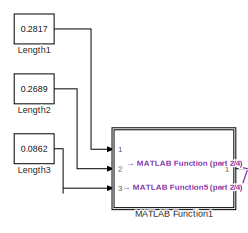
[diagram: root canvas - part 1/4, top center region]
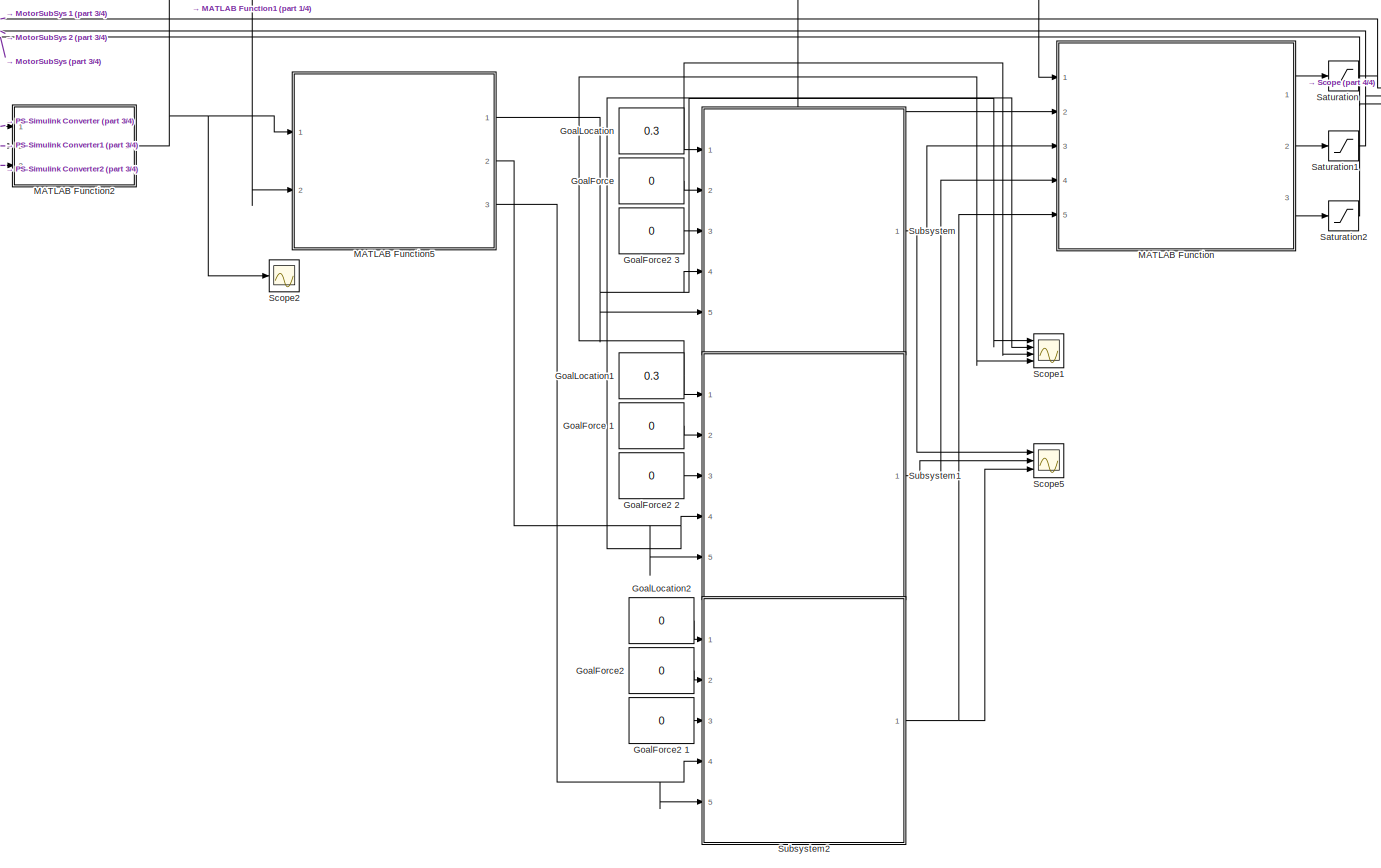
[diagram: root canvas - part 2/4, right side, full height]
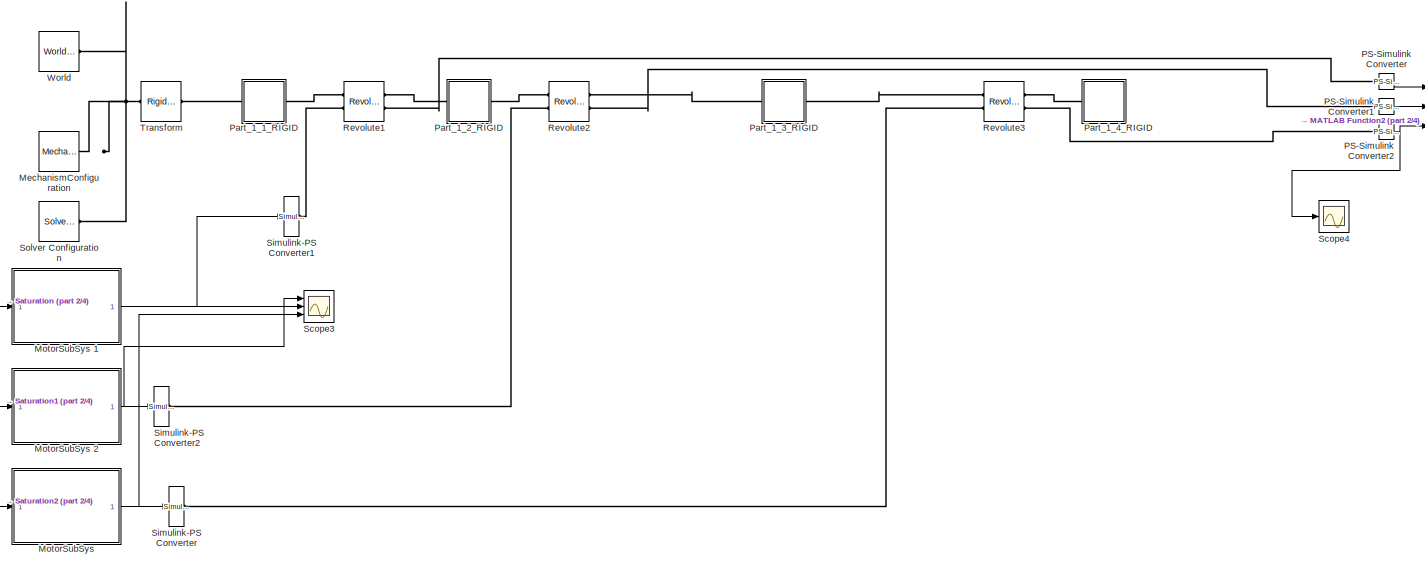
[diagram: root canvas - part 3/4, middle left region]
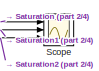
[diagram: root canvas - part 4/4, middle right region]
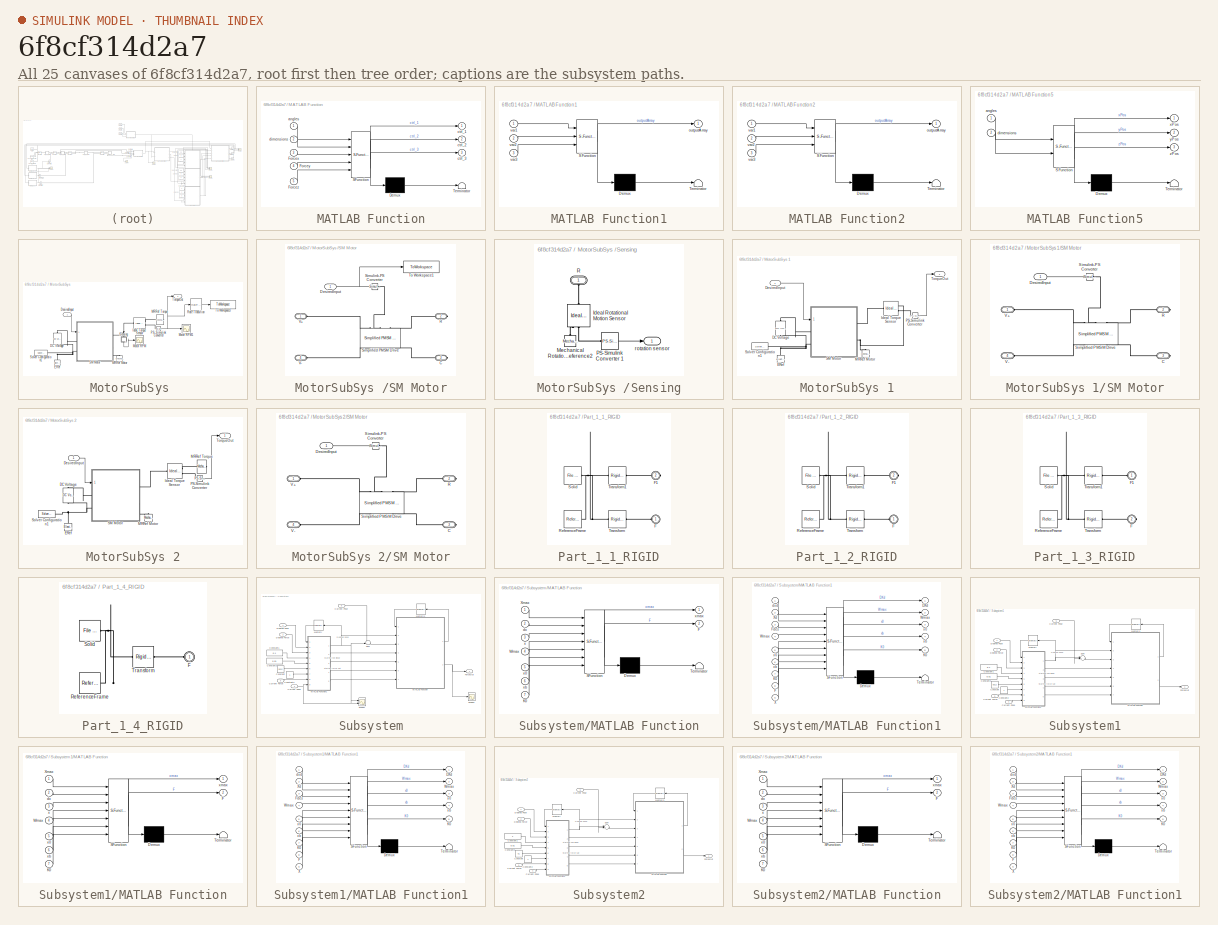
[diagram: thumbnail index - all 25 canvases of the model, root first then tree order]
MODEL slx_6f8cf314d2a7
KIND model
CONFIG AbsTol = auto
CONFIG EnableMultiTasking = off
CONFIG FixedStep = 0.00001
CONFIG MaxStep = auto
CONFIG MinStep = auto
CONFIG RelTol = auto
CONFIG SampleTimeConstraint = Unconstrained
CONFIG Solver = VariableStepAuto
CONFIG SolverName = VariableStepAuto
CONFIG StartTime = 0.0
CONFIG StopTime = inf
WORKSPACE source: external: MATLAB File  (data not in archive)
BLOCK [Constant] GoalForce 
  Value = 0
BLOCK [Constant] GoalForce 1
  Value = 0
BLOCK [Constant] GoalForce2 
  Value = 0
BLOCK [Constant] GoalForce2 1
  Value = 0
BLOCK [Constant] GoalForce2 2
  Value = 0
BLOCK [Constant] GoalForce2 3
  Value = 0
BLOCK [Constant] GoalLocation
  Value = 0.3
BLOCK [Constant] GoalLocation1
  Value = 0.3
BLOCK [Constant] GoalLocation2
  Value = 0
BLOCK [Constant] Length1 
  Value = 0.2817
BLOCK [Constant] Length2 
  Value = 0.2689
BLOCK [Constant] Length3 
  Value = 0.0862
BLOCK [SubSystem] MATLAB Function
  ErrorFcn = Stateflow.Translate.translate
  PermitHierarchicalResolution = ExplicitOnly
  Ports = [5, 3]
  RequestExecContextInheritance = off
  SFBlockType = MATLAB Function
  TreatAsAtomicUnit = on
BLOCK [Demux] MATLAB Function/ Demux 
  Outputs = 1
  Ports = [1, 1]
BLOCK [S-Function] MATLAB Function/ SFunction 
  EnableBusSupport = on
  FunctionName = sf_sfun
  PortCounts = [5 4]
  Ports = [5, 4]
  SFcnIsStateOwnerBlock = off
  SFunctionDeploymentMode = off
  Tag = Stateflow S-Function 2
BLOCK [Terminator] MATLAB Function/ Terminator 
BLOCK [Inport] MATLAB Function/Forcex
  IconDisplay = Port number
  Port = 3
BLOCK [Inport] MATLAB Function/Forcey
  IconDisplay = Port number
  Port = 4
BLOCK [Inport] MATLAB Function/Forcez
  IconDisplay = Port number
  Port = 5
BLOCK [Inport] MATLAB Function/angles
  IconDisplay = Port number
BLOCK [Outport] MATLAB Function/ctrl_1
  IconDisplay = Port number
BLOCK [Outport] MATLAB Function/ctrl_2
  IconDisplay = Port number
  Port = 2
BLOCK [Outport] MATLAB Function/ctrl_3
  IconDisplay = Port number
  Port = 3
BLOCK [Inport] MATLAB Function/dimensions
  IconDisplay = Port number
  Port = 2
BLOCK [SubSystem] MATLAB Function1
  ErrorFcn = Stateflow.Translate.translate
  PermitHierarchicalResolution = ExplicitOnly
  Ports = [3, 1]
  RequestExecContextInheritance = off
  SFBlockType = MATLAB Function
  TreatAsAtomicUnit = on
BLOCK [Demux] MATLAB Function1/ Demux 
  Outputs = 1
  Ports = [1, 1]
BLOCK [S-Function] MATLAB Function1/ SFunction 
  EnableBusSupport = on
  FunctionName = sf_sfun
  PortCounts = [3 2]
  Ports = [3, 2]
  SFcnIsStateOwnerBlock = off
  SFunctionDeploymentMode = off
  Tag = Stateflow S-Function 1
BLOCK [Terminator] MATLAB Function1/ Terminator 
BLOCK [Outport] MATLAB Function1/outputArray
  IconDisplay = Port number
BLOCK [Inport] MATLAB Function1/var1
  IconDisplay = Port number
BLOCK [Inport] MATLAB Function1/var2
  IconDisplay = Port number
  Port = 2
BLOCK [Inport] MATLAB Function1/var3
  IconDisplay = Port number
  Port = 3
BLOCK [SubSystem] MATLAB Function2
  ErrorFcn = Stateflow.Translate.translate
  PermitHierarchicalResolution = ExplicitOnly
  Ports = [3, 1]
  RequestExecContextInheritance = off
  SFBlockType = MATLAB Function
  TreatAsAtomicUnit = on
BLOCK [Demux] MATLAB Function2/ Demux 
  Outputs = 1
  Ports = [1, 1]
BLOCK [S-Function] MATLAB Function2/ SFunction 
  EnableBusSupport = on
  FunctionName = sf_sfun
  PortCounts = [3 2]
  Ports = [3, 2]
  SFcnIsStateOwnerBlock = off
  SFunctionDeploymentMode = off
  Tag = Stateflow S-Function 3
BLOCK [Terminator] MATLAB Function2/ Terminator 
BLOCK [Outport] MATLAB Function2/outputArray
  IconDisplay = Port number
BLOCK [Inport] MATLAB Function2/var1
  IconDisplay = Port number
BLOCK [Inport] MATLAB Function2/var2
  IconDisplay = Port number
  Port = 2
BLOCK [Inport] MATLAB Function2/var3
  IconDisplay = Port number
  Port = 3
BLOCK [SubSystem] MATLAB Function5
  ErrorFcn = Stateflow.Translate.translate
  PermitHierarchicalResolution = ExplicitOnly
  Ports = [2, 3]
  RequestExecContextInheritance = off
  SFBlockType = MATLAB Function
  TreatAsAtomicUnit = on
BLOCK [Demux] MATLAB Function5/ Demux 
  Outputs = 1
  Ports = [1, 1]
BLOCK [S-Function] MATLAB Function5/ SFunction 
  EnableBusSupport = on
  FunctionName = sf_sfun
  PortCounts = [2 4]
  Ports = [2, 4]
  SFcnIsStateOwnerBlock = off
  SFunctionDeploymentMode = off
  Tag = Stateflow S-Function 8
BLOCK [Terminator] MATLAB Function5/ Terminator 
BLOCK [Inport] MATLAB Function5/angles
  IconDisplay = Port number
BLOCK [Inport] MATLAB Function5/dimensions
  IconDisplay = Port number
  Port = 2
BLOCK [Outport] MATLAB Function5/xPos
  IconDisplay = Port number
BLOCK [Outport] MATLAB Function5/yPos
  IconDisplay = Port number
  Port = 2
BLOCK [Outport] MATLAB Function5/zPos
  IconDisplay = Port number
  Port = 3
BLOCK [Reference] MechanismConfiguration  REF=sm_lib/Utilities/Mechanism
Configuration
  Ports = [0, 0, 0, 0, 0, 0, 1]
  SourceBlock = sm_lib/Utilities/Mechanism\nConfiguration
  SourceProductBaseCode = MS
  SourceProductName = Simscape Multibody
  SourceType = Mechanism\nConfiguration
BLOCK [SubSystem] MotorSubSys 
  Ports = [1, 1]
  RequestExecContextInheritance = off
BLOCK [Reference] MotorSubSys /DC Voltage  REF=fl_lib/Electrical/Electrical Sources/DC Voltage Source
  Ports = [0, 0, 0, 0, 0, 1, 1]
  SourceBlock = fl_lib/Electrical/Electrical Sources/DC Voltage Source
  SourceProductBaseCode = SS
  SourceProductName = Simscape
  SourceType = DC Voltage Source
BLOCK [Inport] MotorSubSys /DesiredInput 
  IconDisplay = Port number
BLOCK [Reference] MotorSubSys /ERef  REF=fl_lib/Electrical/Electrical Elements/Electrical Reference
  Ports = [0, 0, 0, 0, 0, 1]
  SourceBlock = fl_lib/Electrical/Electrical Elements/Electrical Reference
  SourceProductBaseCode = SS
  SourceProductName = Simscape
  SourceType = Electrical Reference
BLOCK [Reference] MotorSubSys /Ideal Torque Sensor  REF=fl_lib/Mechanical/Mechanical Sensors/Ideal Torque Sensor
  Ports = [0, 0, 0, 0, 0, 1, 2]
  SourceBlock = fl_lib/Mechanical/Mechanical Sensors/Ideal Torque Sensor
  SourceProductBaseCode = SS
  SourceProductName = Simscape
  SourceType = Ideal Torque Sensor
BLOCK [Reference] MotorSubSys /MRRef Motor  REF=fl_lib/Mechanical/Rotational Elements/Mechanical
Rotational Reference
  Ports = [0, 0, 0, 0, 0, 1]
  SourceBlock = fl_lib/Mechanical/Rotational Elements/Mechanical\nRotational Reference
  SourceProductBaseCode = SS
  SourceProductName = Simscape
  SourceType = Mechanical\nRotational Reference
BLOCK [Reference] MotorSubSys /MRRef Torque  REF=fl_lib/Mechanical/Rotational Elements/Mechanical
Rotational Reference
  Ports = [0, 0, 0, 0, 0, 1]
  SourceBlock = fl_lib/Mechanical/Rotational Elements/Mechanical\nRotational Reference
  SourceProductBaseCode = SS
  SourceProductName = Simscape
  SourceType = Mechanical\nRotational Reference
BLOCK [Scope] MotorSubSys /Motor RPM
  Floating = off
  NumInputPorts = 1
  Ports = [1]
  ScopeSpecificationString = Simulink.scopes.TimeScopeBlockCfg('CurrentConfiguration', extmgr.ConfigurationSet(extmgr.Configuration('Core','General UI',true),extmgr.Configuration('Core','Source UI',true),extmgr.Configuration('Sources','WiredSimulink',true,'DataLoggingSaveFormat','StructureWithTime','DataLoggingLimitDataPoints',true,'DataLoggingDecimation','1','DataLoggingVariableName','ScopeData1'),extmgr.Configuration('Visua...<+1732ch>
BLOCK [Scope] MotorSubSys /Motor RPM1
  Floating = off
  NumInputPorts = 1
  Ports = [1]
  ScopeSpecificationString = Simulink.scopes.TimeScopeBlockCfg('CurrentConfiguration', extmgr.ConfigurationSet(extmgr.Configuration('Core','General UI',true),extmgr.Configuration('Core','Source UI',true),extmgr.Configuration('Sources','WiredSimulink',true,'DataLoggingSaveFormat','StructureWithTime','DataLoggingLimitDataPoints',true,'DataLoggingDecimation','1'),extmgr.Configuration('Visuals','Time Domain',true,'SerializedDispl...<+1695ch>
BLOCK [Reference] MotorSubSys /PS-Simulink Converter  REF=nesl_utility/PS-Simulink
Converter
  Ports = [0, 1, 0, 0, 0, 1]
  SourceBlock = nesl_utility/PS-Simulink\nConverter
  SourceProductBaseCode = SS
  SourceProductName = Simscape
  SourceType = PS-Simulink\nConverter
BLOCK [RateTransition] MotorSubSys /Rate Transition
  OutPortSampleTime = 1e-3
BLOCK [SubSystem] MotorSubSys /SM Motor
  Ports = [1, 0, 0, 0, 0, 2, 2]
  RequestExecContextInheritance = off
  Tag = PublishSubsystem
BLOCK [PMIOPort] MotorSubSys /SM Motor/C
  Port = 3
  Side = Right
BLOCK [Inport] MotorSubSys /SM Motor/DesiredInput 
  IconDisplay = Port number
BLOCK [PMIOPort] MotorSubSys /SM Motor/R
  Port = 2
  Side = Right
BLOCK [Reference] MotorSubSys /SM Motor/Simplified PMSM Drive  REF=ee_lib/Electromechanical/Permanent Magnet/Simplified PMSM
Drive
  Ports = [0, 0, 0, 0, 0, 3, 3]
  SourceBlock = ee_lib/Electromechanical/Permanent Magnet/Simplified PMSM\nDrive
  SourceProductBaseCode = PS
  SourceProductName = Simscape Electrical
  SourceType = Simplified PMSM\nDrive
BLOCK [Reference] MotorSubSys /SM Motor/Simulink-PS Converter  REF=nesl_utility/Simulink-PS
Converter
  Ports = [1, 0, 0, 0, 0, 0, 1]
  SourceBlock = nesl_utility/Simulink-PS\nConverter
  SourceProductBaseCode = SS
  SourceProductName = Simscape
  SourceType = Simulink-PS\nConverter
BLOCK [ToWorkspace] MotorSubSys /SM Motor/To Workspace1
  FixptAsFi = on
  MaxDataPoints = inf
  Ports = [1]
  SampleTime = -1
  VariableName = desiredTorque
BLOCK [PMIOPort] MotorSubSys /SM Motor/V+
  Side = Left
BLOCK [PMIOPort] MotorSubSys /SM Motor/V-
  Port = 4
  Side = Left
BLOCK [SubSystem] MotorSubSys /Sensing
  Ports = [0, 1, 0, 0, 0, 1]
  RequestExecContextInheritance = off
BLOCK [Reference] MotorSubSys /Sensing/Ideal Rotational Motion Sensor  REF=fl_lib/Mechanical/Mechanical Sensors/Ideal Rotational
Motion Sensor
  Ports = [0, 0, 0, 0, 0, 1, 3]
  SourceBlock = fl_lib/Mechanical/Mechanical Sensors/Ideal Rotational\nMotion Sensor
  SourceProductBaseCode = SS
  SourceProductName = Simscape
  SourceType = Ideal Rotational\nMotion Sensor
BLOCK [Reference] MotorSubSys /Sensing/Mechanical Rotational Reference2  REF=fl_lib/Mechanical/Rotational Elements/Mechanical
Rotational Reference
  Ports = [0, 0, 0, 0, 0, 1]
  SourceBlock = fl_lib/Mechanical/Rotational Elements/Mechanical\nRotational Reference
  SourceProductBaseCode = SS
  SourceProductName = Simscape
  SourceType = Mechanical\nRotational Reference
BLOCK [Reference] MotorSubSys /Sensing/PS-Simulink Converter 1  REF=nesl_utility/PS-Simulink
Converter
  Ports = [0, 1, 0, 0, 0, 1]
  SourceBlock = nesl_utility/PS-Simulink\nConverter
  SourceProductBaseCode = SS
  SourceProductName = Simscape
  SourceType = PS-Simulink\nConverter
BLOCK [PMIOPort] MotorSubSys /Sensing/R
  Side = Left
BLOCK [Outport] MotorSubSys /Sensing/rotation sensor 
  IconDisplay = Port number
  VectorParamsAs1DForOutWhenUnconnected = off
BLOCK [Reference] MotorSubSys /Solver Configuration1  REF=nesl_utility/Solver
Configuration
  Ports = [0, 0, 0, 0, 0, 0, 1]
  SourceBlock = nesl_utility/Solver\nConfiguration
  SourceProductBaseCode = SS
  SourceProductName = Simscape
  SourceType = Solver\nConfiguration
BLOCK [ToWorkspace] MotorSubSys /To Workspace3
  FixptAsFi = on
  MaxDataPoints = inf
  Ports = [1]
  SampleTime = -1
  SaveFormat = Structure With Time
  VariableName = normalisedTorque
BLOCK [Outport] MotorSubSys /TorqueOut 
  IconDisplay = Port number
BLOCK [SubSystem] MotorSubSys 1
  Ports = [1, 1]
  RequestExecContextInheritance = off
BLOCK [Reference] MotorSubSys 1/DC Voltage  REF=fl_lib/Electrical/Electrical Sources/DC Voltage Source
  Ports = [0, 0, 0, 0, 0, 1, 1]
  SourceBlock = fl_lib/Electrical/Electrical Sources/DC Voltage Source
  SourceProductBaseCode = SS
  SourceProductName = Simscape
  SourceType = DC Voltage Source
BLOCK [Inport] MotorSubSys 1/DesiredInput 
  IconDisplay = Port number
BLOCK [Reference] MotorSubSys 1/ERef  REF=fl_lib/Electrical/Electrical Elements/Electrical Reference
  Ports = [0, 0, 0, 0, 0, 1]
  SourceBlock = fl_lib/Electrical/Electrical Elements/Electrical Reference
  SourceProductBaseCode = SS
  SourceProductName = Simscape
  SourceType = Electrical Reference
BLOCK [Reference] MotorSubSys 1/Ideal Torque Sensor  REF=fl_lib/Mechanical/Mechanical Sensors/Ideal Torque Sensor
  Ports = [0, 0, 0, 0, 0, 1, 2]
  SourceBlock = fl_lib/Mechanical/Mechanical Sensors/Ideal Torque Sensor
  SourceProductBaseCode = SS
  SourceProductName = Simscape
  SourceType = Ideal Torque Sensor
BLOCK [Reference] MotorSubSys 1/MRRef Motor  REF=fl_lib/Mechanical/Rotational Elements/Mechanical
Rotational Reference
  Ports = [0, 0, 0, 0, 0, 1]
  SourceBlock = fl_lib/Mechanical/Rotational Elements/Mechanical\nRotational Reference
  SourceProductBaseCode = SS
  SourceProductName = Simscape
  SourceType = Mechanical\nRotational Reference
BLOCK [Reference] MotorSubSys 1/PS-Simulink Converter  REF=nesl_utility/PS-Simulink
Converter
  Ports = [0, 1, 0, 0, 0, 1]
  SourceBlock = nesl_utility/PS-Simulink\nConverter
  SourceProductBaseCode = SS
  SourceProductName = Simscape
  SourceType = PS-Simulink\nConverter
BLOCK [SubSystem] MotorSubSys 1/SM Motor
  Ports = [1, 0, 0, 0, 0, 2, 2]
  RequestExecContextInheritance = off
  Tag = PublishSubsystem
BLOCK [PMIOPort] MotorSubSys 1/SM Motor/C
  Port = 3
  Side = Right
BLOCK [Inport] MotorSubSys 1/SM Motor/DesiredInput 
  IconDisplay = Port number
BLOCK [PMIOPort] MotorSubSys 1/SM Motor/R
  Port = 2
  Side = Right
BLOCK [Reference] MotorSubSys 1/SM Motor/Simplified PMSM Drive  REF=ee_lib/Electromechanical/Permanent Magnet/Simplified PMSM
Drive
  Ports = [0, 0, 0, 0, 0, 3, 3]
  SourceBlock = ee_lib/Electromechanical/Permanent Magnet/Simplified PMSM\nDrive
  SourceProductBaseCode = PS
  SourceProductName = Simscape Electrical
  SourceType = Simplified PMSM\nDrive
BLOCK [Reference] MotorSubSys 1/SM Motor/Simulink-PS Converter  REF=nesl_utility/Simulink-PS
Converter
  Ports = [1, 0, 0, 0, 0, 0, 1]
  SourceBlock = nesl_utility/Simulink-PS\nConverter
  SourceProductBaseCode = SS
  SourceProductName = Simscape
  SourceType = Simulink-PS\nConverter
BLOCK [PMIOPort] MotorSubSys 1/SM Motor/V+
  Side = Left
BLOCK [PMIOPort] MotorSubSys 1/SM Motor/V-
  Port = 4
  Side = Left
BLOCK [Reference] MotorSubSys 1/Solver Configuration1  REF=nesl_utility/Solver
Configuration
  Ports = [0, 0, 0, 0, 0, 0, 1]
  SourceBlock = nesl_utility/Solver\nConfiguration
  SourceProductBaseCode = SS
  SourceProductName = Simscape
  SourceType = Solver\nConfiguration
BLOCK [Outport] MotorSubSys 1/TorqueOut 
  IconDisplay = Port number
BLOCK [SubSystem] MotorSubSys 2
  Ports = [1, 1]
  RequestExecContextInheritance = off
BLOCK [Reference] MotorSubSys 2/DC Voltage  REF=fl_lib/Electrical/Electrical Sources/DC Voltage Source
  Ports = [0, 0, 0, 0, 0, 1, 1]
  SourceBlock = fl_lib/Electrical/Electrical Sources/DC Voltage Source
  SourceProductBaseCode = SS
  SourceProductName = Simscape
  SourceType = DC Voltage Source
BLOCK [Inport] MotorSubSys 2/DesiredInput 
  IconDisplay = Port number
BLOCK [Reference] MotorSubSys 2/ERef  REF=fl_lib/Electrical/Electrical Elements/Electrical Reference
  Ports = [0, 0, 0, 0, 0, 1]
  SourceBlock = fl_lib/Electrical/Electrical Elements/Electrical Reference
  SourceProductBaseCode = SS
  SourceProductName = Simscape
  SourceType = Electrical Reference
BLOCK [Reference] MotorSubSys 2/Ideal Torque Sensor  REF=fl_lib/Mechanical/Mechanical Sensors/Ideal Torque Sensor
  Ports = [0, 0, 0, 0, 0, 1, 2]
  SourceBlock = fl_lib/Mechanical/Mechanical Sensors/Ideal Torque Sensor
  SourceProductBaseCode = SS
  SourceProductName = Simscape
  SourceType = Ideal Torque Sensor
BLOCK [Reference] MotorSubSys 2/MRRef Motor  REF=fl_lib/Mechanical/Rotational Elements/Mechanical
Rotational Reference
  Ports = [0, 0, 0, 0, 0, 1]
  SourceBlock = fl_lib/Mechanical/Rotational Elements/Mechanical\nRotational Reference
  SourceProductBaseCode = SS
  SourceProductName = Simscape
  SourceType = Mechanical\nRotational Reference
BLOCK [Reference] MotorSubSys 2/MRRef Torque  REF=fl_lib/Mechanical/Rotational Elements/Mechanical
Rotational Reference
  Ports = [0, 0, 0, 0, 0, 1]
  SourceBlock = fl_lib/Mechanical/Rotational Elements/Mechanical\nRotational Reference
  SourceProductBaseCode = SS
  SourceProductName = Simscape
  SourceType = Mechanical\nRotational Reference
BLOCK [Reference] MotorSubSys 2/PS-Simulink Converter  REF=nesl_utility/PS-Simulink
Converter
  Ports = [0, 1, 0, 0, 0, 1]
  SourceBlock = nesl_utility/PS-Simulink\nConverter
  SourceProductBaseCode = SS
  SourceProductName = Simscape
  SourceType = PS-Simulink\nConverter
BLOCK [SubSystem] MotorSubSys 2/SM Motor
  Ports = [1, 0, 0, 0, 0, 2, 2]
  RequestExecContextInheritance = off
  Tag = PublishSubsystem
BLOCK [PMIOPort] MotorSubSys 2/SM Motor/C
  Port = 3
  Side = Right
BLOCK [Inport] MotorSubSys 2/SM Motor/DesiredInput 
  IconDisplay = Port number
BLOCK [PMIOPort] MotorSubSys 2/SM Motor/R
  Port = 2
  Side = Right
BLOCK [Reference] MotorSubSys 2/SM Motor/Simplified PMSM Drive  REF=ee_lib/Electromechanical/Permanent Magnet/Simplified PMSM
Drive
  Ports = [0, 0, 0, 0, 0, 3, 3]
  SourceBlock = ee_lib/Electromechanical/Permanent Magnet/Simplified PMSM\nDrive
  SourceProductBaseCode = PS
  SourceProductName = Simscape Electrical
  SourceType = Simplified PMSM\nDrive
BLOCK [Reference] MotorSubSys 2/SM Motor/Simulink-PS Converter  REF=nesl_utility/Simulink-PS
Converter
  Ports = [1, 0, 0, 0, 0, 0, 1]
  SourceBlock = nesl_utility/Simulink-PS\nConverter
  SourceProductBaseCode = SS
  SourceProductName = Simscape
  SourceType = Simulink-PS\nConverter
BLOCK [PMIOPort] MotorSubSys 2/SM Motor/V+
  Side = Left
BLOCK [PMIOPort] MotorSubSys 2/SM Motor/V-
  Port = 4
  Side = Left
BLOCK [Reference] MotorSubSys 2/Solver Configuration1  REF=nesl_utility/Solver
Configuration
  Ports = [0, 0, 0, 0, 0, 0, 1]
  SourceBlock = nesl_utility/Solver\nConfiguration
  SourceProductBaseCode = SS
  SourceProductName = Simscape
  SourceType = Solver\nConfiguration
BLOCK [Outport] MotorSubSys 2/TorqueOut 
  IconDisplay = Port number
BLOCK [Reference] PS-Simulink Converter  REF=nesl_utility/PS-Simulink
Converter
  Ports = [0, 1, 0, 0, 0, 1]
  SourceBlock = nesl_utility/PS-Simulink\nConverter
  SourceProductBaseCode = SS
  SourceProductName = Simscape
  SourceType = PS-Simulink\nConverter
BLOCK [Reference] PS-Simulink Converter1  REF=nesl_utility/PS-Simulink
Converter
  Ports = [0, 1, 0, 0, 0, 1]
  SourceBlock = nesl_utility/PS-Simulink\nConverter
  SourceProductBaseCode = SS
  SourceProductName = Simscape
  SourceType = PS-Simulink\nConverter
BLOCK [Reference] PS-Simulink Converter2  REF=nesl_utility/PS-Simulink
Converter
  Ports = [0, 1, 0, 0, 0, 1]
  SourceBlock = nesl_utility/PS-Simulink\nConverter
  SourceProductBaseCode = SS
  SourceProductName = Simscape
  SourceType = PS-Simulink\nConverter
BLOCK [SubSystem] Part_1_1_RIGID
  Ports = [0, 0, 0, 0, 0, 1, 1]
  RequestExecContextInheritance = off
BLOCK [PMIOPort] Part_1_1_RIGID/F
  Side = Left
BLOCK [PMIOPort] Part_1_1_RIGID/F1
  Port = 2
  Side = Right
BLOCK [Reference] Part_1_1_RIGID/ReferenceFrame  REF=sm_lib/Frames and
Transforms/Reference
Frame
  Ports = [0, 0, 0, 0, 0, 0, 1]
  SourceBlock = sm_lib/Frames and\nTransforms/Reference\nFrame
  SourceProductBaseCode = MS
  SourceProductName = Simscape Multibody
  SourceType = Reference\nFrame
BLOCK [Reference] Part_1_1_RIGID/Solid  REF=sm_lib/Body Elements/File Solid
  Ports = [0, 0, 0, 0, 0, 0, 1]
  SourceBlock = sm_lib/Body Elements/File Solid
  SourceProductBaseCode = MS
  SourceProductName = Simscape Multibody
  SourceType = File Solid
BLOCK [Reference] Part_1_1_RIGID/Transform  REF=sm_lib/Frames and
Transforms/Rigid
Transform
  Ports = [0, 0, 0, 0, 0, 1, 1]
  SourceBlock = sm_lib/Frames and\nTransforms/Rigid\nTransform
  SourceProductBaseCode = MS
  SourceProductName = Simscape Multibody
  SourceType = Rigid\nTransform
BLOCK [Reference] Part_1_1_RIGID/Transform1  REF=sm_lib/Frames and
Transforms/Rigid
Transform
  Ports = [0, 0, 0, 0, 0, 1, 1]
  SourceBlock = sm_lib/Frames and\nTransforms/Rigid\nTransform
  SourceProductBaseCode = MS
  SourceProductName = Simscape Multibody
  SourceType = Rigid\nTransform
BLOCK [SubSystem] Part_1_2_RIGID
  Ports = [0, 0, 0, 0, 0, 1, 1]
  RequestExecContextInheritance = off
BLOCK [PMIOPort] Part_1_2_RIGID/F
  Side = Left
BLOCK [PMIOPort] Part_1_2_RIGID/F1
  Port = 2
  Side = Right
BLOCK [Reference] Part_1_2_RIGID/ReferenceFrame  REF=sm_lib/Frames and
Transforms/Reference
Frame
  Ports = [0, 0, 0, 0, 0, 0, 1]
  SourceBlock = sm_lib/Frames and\nTransforms/Reference\nFrame
  SourceProductBaseCode = MS
  SourceProductName = Simscape Multibody
  SourceType = Reference\nFrame
BLOCK [Reference] Part_1_2_RIGID/Solid  REF=sm_lib/Body Elements/File Solid
  Ports = [0, 0, 0, 0, 0, 0, 1]
  SourceBlock = sm_lib/Body Elements/File Solid
  SourceProductBaseCode = MS
  SourceProductName = Simscape Multibody
  SourceType = File Solid
BLOCK [Reference] Part_1_2_RIGID/Transform  REF=sm_lib/Frames and
Transforms/Rigid
Transform
  Ports = [0, 0, 0, 0, 0, 1, 1]
  SourceBlock = sm_lib/Frames and\nTransforms/Rigid\nTransform
  SourceProductBaseCode = MS
  SourceProductName = Simscape Multibody
  SourceType = Rigid\nTransform
BLOCK [Reference] Part_1_2_RIGID/Transform1  REF=sm_lib/Frames and
Transforms/Rigid
Transform
  Ports = [0, 0, 0, 0, 0, 1, 1]
  SourceBlock = sm_lib/Frames and\nTransforms/Rigid\nTransform
  SourceProductBaseCode = MS
  SourceProductName = Simscape Multibody
  SourceType = Rigid\nTransform
BLOCK [SubSystem] Part_1_3_RIGID
  Ports = [0, 0, 0, 0, 0, 1, 1]
  RequestExecContextInheritance = off
BLOCK [PMIOPort] Part_1_3_RIGID/F
  Port = 2
  Side = Right
BLOCK [PMIOPort] Part_1_3_RIGID/F1
  Side = Left
BLOCK [Reference] Part_1_3_RIGID/ReferenceFrame  REF=sm_lib/Frames and
Transforms/Reference
Frame
  Ports = [0, 0, 0, 0, 0, 0, 1]
  SourceBlock = sm_lib/Frames and\nTransforms/Reference\nFrame
  SourceProductBaseCode = MS
  SourceProductName = Simscape Multibody
  SourceType = Reference\nFrame
BLOCK [Reference] Part_1_3_RIGID/Solid  REF=sm_lib/Body Elements/File Solid
  Ports = [0, 0, 0, 0, 0, 0, 1]
  SourceBlock = sm_lib/Body Elements/File Solid
  SourceProductBaseCode = MS
  SourceProductName = Simscape Multibody
  SourceType = File Solid
BLOCK [Reference] Part_1_3_RIGID/Transform  REF=sm_lib/Frames and
Transforms/Rigid
Transform
  Ports = [0, 0, 0, 0, 0, 1, 1]
  SourceBlock = sm_lib/Frames and\nTransforms/Rigid\nTransform
  SourceProductBaseCode = MS
  SourceProductName = Simscape Multibody
  SourceType = Rigid\nTransform
BLOCK [Reference] Part_1_3_RIGID/Transform1  REF=sm_lib/Frames and
Transforms/Rigid
Transform
  Ports = [0, 0, 0, 0, 0, 1, 1]
  SourceBlock = sm_lib/Frames and\nTransforms/Rigid\nTransform
  SourceProductBaseCode = MS
  SourceProductName = Simscape Multibody
  SourceType = Rigid\nTransform
BLOCK [SubSystem] Part_1_4_RIGID
  Ports = [0, 0, 0, 0, 0, 1]
  RequestExecContextInheritance = off
BLOCK [PMIOPort] Part_1_4_RIGID/F
  Side = Left
BLOCK [Reference] Part_1_4_RIGID/ReferenceFrame  REF=sm_lib/Frames and
Transforms/Reference
Frame
  Ports = [0, 0, 0, 0, 0, 0, 1]
  SourceBlock = sm_lib/Frames and\nTransforms/Reference\nFrame
  SourceProductBaseCode = MS
  SourceProductName = Simscape Multibody
  SourceType = Reference\nFrame
BLOCK [Reference] Part_1_4_RIGID/Solid  REF=sm_lib/Body Elements/File Solid
  Ports = [0, 0, 0, 0, 0, 0, 1]
  SourceBlock = sm_lib/Body Elements/File Solid
  SourceProductBaseCode = MS
  SourceProductName = Simscape Multibody
  SourceType = File Solid
BLOCK [Reference] Part_1_4_RIGID/Transform  REF=sm_lib/Frames and
Transforms/Rigid
Transform
  Ports = [0, 0, 0, 0, 0, 1, 1]
  SourceBlock = sm_lib/Frames and\nTransforms/Rigid\nTransform
  SourceProductBaseCode = MS
  SourceProductName = Simscape Multibody
  SourceType = Rigid\nTransform
BLOCK [Reference] Revolute1  REF=sm_lib/Joints/Revolute Joint
  Ports = [0, 0, 0, 0, 0, 2, 2]
  SourceBlock = sm_lib/Joints/Revolute Joint
  SourceProductBaseCode = MS
  SourceProductName = Simscape Multibody
  SourceType = Revolute Joint
BLOCK [Reference] Revolute2  REF=sm_lib/Joints/Revolute Joint
  Ports = [0, 0, 0, 0, 0, 2, 2]
  SourceBlock = sm_lib/Joints/Revolute Joint
  SourceProductBaseCode = MS
  SourceProductName = Simscape Multibody
  SourceType = Revolute Joint
BLOCK [Reference] Revolute3  REF=sm_lib/Joints/Revolute Joint
  Ports = [0, 0, 0, 0, 0, 2, 2]
  SourceBlock = sm_lib/Joints/Revolute Joint
  SourceProductBaseCode = MS
  SourceProductName = Simscape Multibody
  SourceType = Revolute Joint
BLOCK [Saturate] Saturation
  Commented = through
  InputPortMap = u0
  LowerLimit = -0.1
  Ports = [1, 1]
  UpperLimit = 0.1
BLOCK [Saturate] Saturation1
  Commented = through
  InputPortMap = u0
  LowerLimit = -0.1
  Ports = [1, 1]
  UpperLimit = 0.1
BLOCK [Saturate] Saturation2
  Commented = through
  InputPortMap = u0
  LowerLimit = -0.1
  Ports = [1, 1]
  UpperLimit = 0.1
BLOCK [Scope] Scope
  Floating = off
  NumInputPorts = 3
  Ports = [3]
  ScopeSpecificationString = Simulink.scopes.TimeScopeBlockCfg('CurrentConfiguration', extmgr.ConfigurationSet(extmgr.Configuration('Core','General UI',true),extmgr.Configuration('Core','Source UI',true),extmgr.Configuration('Sources','WiredSimulink',true,'DataLoggingVariableName','ScopeData1'),extmgr.Configuration('Visuals','Time Domain',true,'SerializedDisplays',{struct('MinYLimReal','-0.0782','MaxYLimReal','0.07944','YLabe...<+1451ch>
BLOCK [Scope] Scope1
  Floating = off
  NumInputPorts = 4
  Ports = [4]
  ScopeSpecificationString = Simulink.scopes.TimeScopeBlockCfg('CurrentConfiguration', extmgr.ConfigurationSet(extmgr.Configuration('Core','General UI',true),extmgr.Configuration('Core','Source UI',true),extmgr.Configuration('Sources','WiredSimulink',true,'DataLoggingVariableName','ScopeData2'),extmgr.Configuration('Visuals','Time Domain',true,'SerializedDisplays',{struct('MinYLimReal','0.23118','MaxYLimReal','0.30765','YLabe...<+1509ch>
BLOCK [Scope] Scope2
  Floating = off
  NumInputPorts = 1
  Ports = [1]
  ScopeSpecificationString = Simulink.scopes.TimeScopeBlockCfg('CurrentConfiguration', extmgr.ConfigurationSet(extmgr.Configuration('Core','General UI',true),extmgr.Configuration('Core','Source UI',true),extmgr.Configuration('Sources','WiredSimulink',true,'DataLoggingVariableName','ScopeData3'),extmgr.Configuration('Visuals','Time Domain',true,'SerializedDisplays',{struct('MinYLimReal','-38.49214','MaxYLimReal','195.52784','Y...<+1484ch>
BLOCK [Scope] Scope3
  Floating = off
  NumInputPorts = 3
  Ports = [3]
  ScopeSpecificationString = Simulink.scopes.TimeScopeBlockCfg('CurrentConfiguration', extmgr.ConfigurationSet(extmgr.Configuration('Core','General UI',true),extmgr.Configuration('Core','Source UI',true),extmgr.Configuration('Sources','WiredSimulink',true,'DataLoggingVariableName','ScopeData4'),extmgr.Configuration('Visuals','Time Domain',true,'SerializedDisplays',{struct('MinYLimReal','-0.58107','MaxYLimReal','0.72066','YLab...<+1478ch>
BLOCK [Scope] Scope4
  Floating = off
  NumInputPorts = 1
  Ports = [1]
  ScopeSpecificationString = Simulink.scopes.TimeScopeBlockCfg('CurrentConfiguration', extmgr.ConfigurationSet(extmgr.Configuration('Core','General UI',true),extmgr.Configuration('Core','Source UI',true),extmgr.Configuration('Sources','WiredSimulink',true,'DataLoggingVariableName','ScopeData1'),extmgr.Configuration('Visuals','Time Domain',true,'SerializedDisplays',{struct('MinYLimReal','-0.15644','MaxYLimReal','1.40799','YLab...<+1435ch>
BLOCK [Scope] Scope5
  Floating = off
  NumInputPorts = 3
  Ports = [3]
  ScopeSpecificationString = Simulink.scopes.TimeScopeBlockCfg('CurrentConfiguration', extmgr.ConfigurationSet(extmgr.Configuration('Core','General UI',true),extmgr.Configuration('Core','Source UI',true),extmgr.Configuration('Sources','WiredSimulink',true,'DataLoggingVariableName','ScopeData2'),extmgr.Configuration('Visuals','Time Domain',true,'SerializedDisplays',{struct('MinYLimReal','-12.5','MaxYLimReal','12.5','YLabelReal...<+1449ch>
BLOCK [Reference] Simulink-PS Converter  REF=nesl_utility/Simulink-PS
Converter
  Ports = [1, 0, 0, 0, 0, 0, 1]
  SourceBlock = nesl_utility/Simulink-PS\nConverter
  SourceProductBaseCode = SS
  SourceProductName = Simscape
  SourceType = Simulink-PS\nConverter
BLOCK [Reference] Simulink-PS Converter1  REF=nesl_utility/Simulink-PS
Converter
  Ports = [1, 0, 0, 0, 0, 0, 1]
  SourceBlock = nesl_utility/Simulink-PS\nConverter
  SourceProductBaseCode = SS
  SourceProductName = Simscape
  SourceType = Simulink-PS\nConverter
BLOCK [Reference] Simulink-PS Converter2  REF=nesl_utility/Simulink-PS
Converter
  Ports = [1, 0, 0, 0, 0, 0, 1]
  SourceBlock = nesl_utility/Simulink-PS\nConverter
  SourceProductBaseCode = SS
  SourceProductName = Simscape
  SourceType = Simulink-PS\nConverter
BLOCK [Reference] Solver Configuration  REF=nesl_utility/Solver
Configuration
  Ports = [0, 0, 0, 0, 0, 0, 1]
  SourceBlock = nesl_utility/Solver\nConfiguration
  SourceProductBaseCode = SS
  SourceProductName = Simscape
  SourceType = Solver\nConfiguration
BLOCK [SubSystem] Subsystem
  Ports = [5, 1]
  RequestExecContextInheritance = off
BLOCK [Constant] Subsystem/Constant
  Value = 0.012
BLOCK [Constant] Subsystem/Constant1
  Value = 0.1
BLOCK [Constant] Subsystem/Constant2
BLOCK [Constant] Subsystem/Constant3
  Value = 0.01
BLOCK [Inport] Subsystem/Current Force
  IconDisplay = Port number
  Port = 3
BLOCK [Inport] Subsystem/Current Pose
  IconDisplay = Port number
  Port = 4
BLOCK [Inport] Subsystem/Current Pose 
  IconDisplay = Port number
  Port = 5
BLOCK [Inport] Subsystem/Desired Force
  IconDisplay = Port number
  Port = 2
BLOCK [Inport] Subsystem/Desired Pose
  IconDisplay = Port number
BLOCK [Outport] Subsystem/ForceOut
  IconDisplay = Port number
BLOCK [SubSystem] Subsystem/MATLAB Function
  ErrorFcn = Stateflow.Translate.translate
  PermitHierarchicalResolution = ExplicitOnly
  Ports = [7, 2]
  RequestExecContextInheritance = off
  SFBlockType = MATLAB Function
  TreatAsAtomicUnit = on
BLOCK [Demux] Subsystem/MATLAB Function/ Demux 
  Outputs = 1
  Ports = [1, 1]
BLOCK [S-Function] Subsystem/MATLAB Function/ SFunction 
  EnableBusSupport = on
  FunctionName = sf_sfun
  PortCounts = [7 3]
  Ports = [7, 3]
  SFcnIsStateOwnerBlock = off
  SFunctionDeploymentMode = off
  Tag = Stateflow S-Function 4
BLOCK [Terminator] Subsystem/MATLAB Function/ Terminator 
BLOCK [Outport] Subsystem/MATLAB Function/F
  IconDisplay = Port number
  Port = 2
BLOCK [Inport] Subsystem/MATLAB Function/K0
  IconDisplay = Port number
  Port = 7
BLOCK [Inport] Subsystem/MATLAB Function/Wmax
  IconDisplay = Port number
  Port = 4
BLOCK [Inport] Subsystem/MATLAB Function/Xmax
  IconDisplay = Port number
BLOCK [Inport] Subsystem/MATLAB Function/dx
  IconDisplay = Port number
  Port = 2
BLOCK [Inport] Subsystem/MATLAB Function/x
  IconDisplay = Port number
  Port = 3
BLOCK [Inport] Subsystem/MATLAB Function/x0
  IconDisplay = Port number
  Port = 5
BLOCK [Inport] Subsystem/MATLAB Function/xb
  IconDisplay = Port number
  Port = 6
BLOCK [Outport] Subsystem/MATLAB Function/xmax
  IconDisplay = Port number
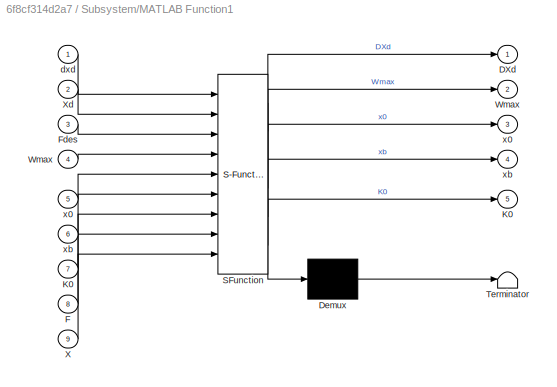
BLOCK [SubSystem] Subsystem/MATLAB Function1
  ErrorFcn = Stateflow.Translate.translate
  PermitHierarchicalResolution = ExplicitOnly
  Ports = [9, 5]
  RequestExecContextInheritance = off
  SFBlockType = MATLAB Function
  TreatAsAtomicUnit = on
BLOCK [Demux] Subsystem/MATLAB Function1/ Demux 
  Outputs = 1
  Ports = [1, 1]
BLOCK [S-Function] Subsystem/MATLAB Function1/ SFunction 
  EnableBusSupport = on
  FunctionName = sf_sfun
  PortCounts = [9 6]
  Ports = [9, 6]
  SFcnIsStateOwnerBlock = off
  SFunctionDeploymentMode = off
  Tag = Stateflow S-Function 5
BLOCK [Terminator] Subsystem/MATLAB Function1/ Terminator 
BLOCK [Outport] Subsystem/MATLAB Function1/DXd
  IconDisplay = Port number
BLOCK [Inport] Subsystem/MATLAB Function1/F
  IconDisplay = Port number
  Port = 8
BLOCK [Inport] Subsystem/MATLAB Function1/Fdes
  IconDisplay = Port number
  Port = 3
BLOCK [Outport] Subsystem/MATLAB Function1/K0
  IconDisplay = Port number
  Port = 5
BLOCK [Inport] Subsystem/MATLAB Function1/K0 
  IconDisplay = Port number
  Port = 7
BLOCK [Outport] Subsystem/MATLAB Function1/Wmax
  IconDisplay = Port number
  Port = 2
BLOCK [Inport] Subsystem/MATLAB Function1/Wmax 
  IconDisplay = Port number
  Port = 4
BLOCK [Inport] Subsystem/MATLAB Function1/X
  IconDisplay = Port number
  Port = 9
BLOCK [Inport] Subsystem/MATLAB Function1/Xd
  IconDisplay = Port number
  Port = 2
BLOCK [Inport] Subsystem/MATLAB Function1/dxd
  IconDisplay = Port number
BLOCK [Outport] Subsystem/MATLAB Function1/x0
  IconDisplay = Port number
  Port = 3
BLOCK [Inport] Subsystem/MATLAB Function1/x0 
  IconDisplay = Port number
  Port = 5
BLOCK [Outport] Subsystem/MATLAB Function1/xb
  IconDisplay = Port number
  Port = 4
BLOCK [Inport] Subsystem/MATLAB Function1/xb 
  IconDisplay = Port number
  Port = 6
BLOCK [Memory] Subsystem/Memory
BLOCK [Memory] Subsystem/Memory1
BLOCK [Scope] Subsystem/Scope1
  Floating = off
  NumInputPorts = 2
  Ports = [2]
  ScopeSpecificationString = Simulink.scopes.TimeScopeBlockCfg('CurrentConfiguration', extmgr.ConfigurationSet(extmgr.Configuration('Core','General UI',true),extmgr.Configuration('Core','Source UI',true),extmgr.Configuration('Sources','WiredSimulink',true,'DataLoggingVariableName','ScopeData3'),extmgr.Configuration('Visuals','Time Domain',true,'SerializedDisplays',{struct('MinYLimReal','0.03352','MaxYLimReal','0.10739','YLabe...<+1467ch>
BLOCK [Scope] Subsystem/Scope2
  Floating = off
  NumInputPorts = 1
  Ports = [1]
  ScopeSpecificationString = Simulink.scopes.TimeScopeBlockCfg('CurrentConfiguration', extmgr.ConfigurationSet(extmgr.Configuration('Core','General UI',true),extmgr.Configuration('Core','Source UI',true),extmgr.Configuration('Sources','WiredSimulink',true,'DataLoggingVariableName','ScopeData4'),extmgr.Configuration('Visuals','Time Domain',true,'SerializedDisplays',{struct('MinYLimReal','-0.125','MaxYLimReal','0.125','YLabelRe...<+1438ch>
BLOCK [Sum] Subsystem/Sum
  IconShape = round
  InputSameDT = off
  Inputs = -+|
  OutDataTypeStr = Inherit: Inherit via internal rule
  Ports = [2, 1]
  SaturateOnIntegerOverflow = off
BLOCK [SubSystem] Subsystem1
  Ports = [5, 1]
  RequestExecContextInheritance = off
BLOCK [Constant] Subsystem1/Constant
  Value = 0.012
BLOCK [Constant] Subsystem1/Constant1
  Value = 0.1
BLOCK [Constant] Subsystem1/Constant2
BLOCK [Constant] Subsystem1/Constant3
  Value = 0.01
BLOCK [Inport] Subsystem1/Current Force
  IconDisplay = Port number
  Port = 3
BLOCK [Inport] Subsystem1/Current Pose
  IconDisplay = Port number
  Port = 4
BLOCK [Inport] Subsystem1/Current Pose 
  IconDisplay = Port number
  Port = 5
BLOCK [Inport] Subsystem1/Desired Force
  IconDisplay = Port number
  Port = 2
BLOCK [Inport] Subsystem1/Desired Pose
  IconDisplay = Port number
BLOCK [Outport] Subsystem1/ForceOut
  IconDisplay = Port number
BLOCK [SubSystem] Subsystem1/MATLAB Function
  ErrorFcn = Stateflow.Translate.translate
  PermitHierarchicalResolution = ExplicitOnly
  Ports = [7, 2]
  RequestExecContextInheritance = off
  SFBlockType = MATLAB Function
  TreatAsAtomicUnit = on
BLOCK [Demux] Subsystem1/MATLAB Function/ Demux 
  Outputs = 1
  Ports = [1, 1]
BLOCK [S-Function] Subsystem1/MATLAB Function/ SFunction 
  EnableBusSupport = on
  FunctionName = sf_sfun
  PortCounts = [7 3]
  Ports = [7, 3]
  SFcnIsStateOwnerBlock = off
  SFunctionDeploymentMode = off
  Tag = Stateflow S-Function 7
BLOCK [Terminator] Subsystem1/MATLAB Function/ Terminator 
BLOCK [Outport] Subsystem1/MATLAB Function/F
  IconDisplay = Port number
  Port = 2
BLOCK [Inport] Subsystem1/MATLAB Function/K0
  IconDisplay = Port number
  Port = 7
BLOCK [Inport] Subsystem1/MATLAB Function/Wmax
  IconDisplay = Port number
  Port = 4
BLOCK [Inport] Subsystem1/MATLAB Function/Xmax
  IconDisplay = Port number
BLOCK [Inport] Subsystem1/MATLAB Function/dx
  IconDisplay = Port number
  Port = 2
BLOCK [Inport] Subsystem1/MATLAB Function/x
  IconDisplay = Port number
  Port = 3
BLOCK [Inport] Subsystem1/MATLAB Function/x0
  IconDisplay = Port number
  Port = 5
BLOCK [Inport] Subsystem1/MATLAB Function/xb
  IconDisplay = Port number
  Port = 6
BLOCK [Outport] Subsystem1/MATLAB Function/xmax
  IconDisplay = Port number
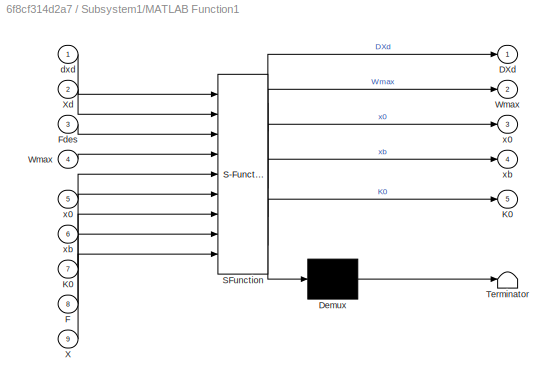
BLOCK [SubSystem] Subsystem1/MATLAB Function1
  ErrorFcn = Stateflow.Translate.translate
  PermitHierarchicalResolution = ExplicitOnly
  Ports = [9, 5]
  RequestExecContextInheritance = off
  SFBlockType = MATLAB Function
  TreatAsAtomicUnit = on
BLOCK [Demux] Subsystem1/MATLAB Function1/ Demux 
  Outputs = 1
  Ports = [1, 1]
BLOCK [S-Function] Subsystem1/MATLAB Function1/ SFunction 
  EnableBusSupport = on
  FunctionName = sf_sfun
  PortCounts = [9 6]
  Ports = [9, 6]
  SFcnIsStateOwnerBlock = off
  SFunctionDeploymentMode = off
  Tag = Stateflow S-Function 9
BLOCK [Terminator] Subsystem1/MATLAB Function1/ Terminator 
BLOCK [Outport] Subsystem1/MATLAB Function1/DXd
  IconDisplay = Port number
BLOCK [Inport] Subsystem1/MATLAB Function1/F
  IconDisplay = Port number
  Port = 8
BLOCK [Inport] Subsystem1/MATLAB Function1/Fdes
  IconDisplay = Port number
  Port = 3
BLOCK [Outport] Subsystem1/MATLAB Function1/K0
  IconDisplay = Port number
  Port = 5
BLOCK [Inport] Subsystem1/MATLAB Function1/K0 
  IconDisplay = Port number
  Port = 7
BLOCK [Outport] Subsystem1/MATLAB Function1/Wmax
  IconDisplay = Port number
  Port = 2
BLOCK [Inport] Subsystem1/MATLAB Function1/Wmax 
  IconDisplay = Port number
  Port = 4
BLOCK [Inport] Subsystem1/MATLAB Function1/X
  IconDisplay = Port number
  Port = 9
BLOCK [Inport] Subsystem1/MATLAB Function1/Xd
  IconDisplay = Port number
  Port = 2
BLOCK [Inport] Subsystem1/MATLAB Function1/dxd
  IconDisplay = Port number
BLOCK [Outport] Subsystem1/MATLAB Function1/x0
  IconDisplay = Port number
  Port = 3
BLOCK [Inport] Subsystem1/MATLAB Function1/x0 
  IconDisplay = Port number
  Port = 5
BLOCK [Outport] Subsystem1/MATLAB Function1/xb
  IconDisplay = Port number
  Port = 4
BLOCK [Inport] Subsystem1/MATLAB Function1/xb 
  IconDisplay = Port number
  Port = 6
BLOCK [Memory] Subsystem1/Memory
BLOCK [Memory] Subsystem1/Memory1
BLOCK [Sum] Subsystem1/Sum
  IconShape = round
  InputSameDT = off
  Inputs = |+-
  OutDataTypeStr = Inherit: Inherit via internal rule
  Ports = [2, 1]
  SaturateOnIntegerOverflow = off
BLOCK [SubSystem] Subsystem2
  Ports = [5, 1]
  RequestExecContextInheritance = off
BLOCK [Constant] Subsystem2/Constant
  Value = 0.1
BLOCK [Constant] Subsystem2/Constant1
BLOCK [Constant] Subsystem2/Constant2
BLOCK [Constant] Subsystem2/Constant3
  Value = 0.01
BLOCK [Inport] Subsystem2/Current Force
  IconDisplay = Port number
  Port = 3
BLOCK [Inport] Subsystem2/Current Pose
  IconDisplay = Port number
  Port = 4
BLOCK [Inport] Subsystem2/Current Pose 
  IconDisplay = Port number
  Port = 5
BLOCK [Inport] Subsystem2/Desired Force
  IconDisplay = Port number
  Port = 2
BLOCK [Inport] Subsystem2/Desired Pose
  IconDisplay = Port number
BLOCK [Outport] Subsystem2/ForceOut
  IconDisplay = Port number
BLOCK [SubSystem] Subsystem2/MATLAB Function
  ErrorFcn = Stateflow.Translate.translate
  PermitHierarchicalResolution = ExplicitOnly
  Ports = [7, 2]
  RequestExecContextInheritance = off
  SFBlockType = MATLAB Function
  TreatAsAtomicUnit = on
BLOCK [Demux] Subsystem2/MATLAB Function/ Demux 
  Outputs = 1
  Ports = [1, 1]
BLOCK [S-Function] Subsystem2/MATLAB Function/ SFunction 
  EnableBusSupport = on
  FunctionName = sf_sfun
  PortCounts = [7 3]
  Ports = [7, 3]
  SFcnIsStateOwnerBlock = off
  SFunctionDeploymentMode = off
  Tag = Stateflow S-Function 10
BLOCK [Terminator] Subsystem2/MATLAB Function/ Terminator 
BLOCK [Outport] Subsystem2/MATLAB Function/F
  IconDisplay = Port number
  Port = 2
BLOCK [Inport] Subsystem2/MATLAB Function/K0
  IconDisplay = Port number
  Port = 7
BLOCK [Inport] Subsystem2/MATLAB Function/Wmax
  IconDisplay = Port number
  Port = 4
BLOCK [Inport] Subsystem2/MATLAB Function/Xmax
  IconDisplay = Port number
BLOCK [Inport] Subsystem2/MATLAB Function/dx
  IconDisplay = Port number
  Port = 2
BLOCK [Inport] Subsystem2/MATLAB Function/x
  IconDisplay = Port number
  Port = 3
BLOCK [Inport] Subsystem2/MATLAB Function/x0
  IconDisplay = Port number
  Port = 5
BLOCK [Inport] Subsystem2/MATLAB Function/xb
  IconDisplay = Port number
  Port = 6
BLOCK [Outport] Subsystem2/MATLAB Function/xmax
  IconDisplay = Port number
BLOCK [SubSystem] Subsystem2/MATLAB Function1
  ErrorFcn = Stateflow.Translate.translate
  PermitHierarchicalResolution = ExplicitOnly
  Ports = [9, 5]
  RequestExecContextInheritance = off
  SFBlockType = MATLAB Function
  TreatAsAtomicUnit = on
BLOCK [Demux] Subsystem2/MATLAB Function1/ Demux 
  Outputs = 1
  Ports = [1, 1]
BLOCK [S-Function] Subsystem2/MATLAB Function1/ SFunction 
  EnableBusSupport = on
  FunctionName = sf_sfun
  PortCounts = [9 6]
  Ports = [9, 6]
  SFcnIsStateOwnerBlock = off
  SFunctionDeploymentMode = off
  Tag = Stateflow S-Function 11
BLOCK [Terminator] Subsystem2/MATLAB Function1/ Terminator 
BLOCK [Outport] Subsystem2/MATLAB Function1/DXd
  IconDisplay = Port number
BLOCK [Inport] Subsystem2/MATLAB Function1/F
  IconDisplay = Port number
  Port = 8
BLOCK [Inport] Subsystem2/MATLAB Function1/Fdes
  IconDisplay = Port number
  Port = 3
BLOCK [Outport] Subsystem2/MATLAB Function1/K0
  IconDisplay = Port number
  Port = 5
BLOCK [Inport] Subsystem2/MATLAB Function1/K0 
  IconDisplay = Port number
  Port = 7
BLOCK [Outport] Subsystem2/MATLAB Function1/Wmax
  IconDisplay = Port number
  Port = 2
BLOCK [Inport] Subsystem2/MATLAB Function1/Wmax 
  IconDisplay = Port number
  Port = 4
BLOCK [Inport] Subsystem2/MATLAB Function1/X
  IconDisplay = Port number
  Port = 9
BLOCK [Inport] Subsystem2/MATLAB Function1/Xd
  IconDisplay = Port number
  Port = 2
BLOCK [Inport] Subsystem2/MATLAB Function1/dxd
  IconDisplay = Port number
BLOCK [Outport] Subsystem2/MATLAB Function1/x0
  IconDisplay = Port number
  Port = 3
BLOCK [Inport] Subsystem2/MATLAB Function1/x0 
  IconDisplay = Port number
  Port = 5
BLOCK [Outport] Subsystem2/MATLAB Function1/xb
  IconDisplay = Port number
  Port = 4
BLOCK [Inport] Subsystem2/MATLAB Function1/xb 
  IconDisplay = Port number
  Port = 6
BLOCK [Memory] Subsystem2/Memory
BLOCK [Memory] Subsystem2/Memory1
BLOCK [Sum] Subsystem2/Sum
  IconShape = round
  InputSameDT = off
  Inputs = |++
  OutDataTypeStr = Inherit: Inherit via internal rule
  Ports = [2, 1]
  SaturateOnIntegerOverflow = off
BLOCK [Reference] Transform  REF=sm_lib/Frames and
Transforms/Rigid
Transform
  Ports = [0, 0, 0, 0, 0, 1, 1]
  SourceBlock = sm_lib/Frames and\nTransforms/Rigid\nTransform
  SourceProductBaseCode = MS
  SourceProductName = Simscape Multibody
  SourceType = Rigid\nTransform
BLOCK [Reference] World  REF=sm_lib/Frames and
Transforms/World Frame
  Ports = [0, 0, 0, 0, 0, 0, 1]
  SourceBlock = sm_lib/Frames and\nTransforms/World Frame
  SourceProductBaseCode = MS
  SourceProductName = Simscape Multibody
  SourceType = World Frame
ANNOTATION Subsystem: Desired pose
ANNOTATION Subsystem: Starting force sat
ANNOTATION Subsystem: starting non linear
ANNOTATION Subsystem1: Desired pose
ANNOTATION Subsystem1: Starting force sat
ANNOTATION Subsystem1: starting non linear
ANNOTATION Subsystem2: Desired pose
ANNOTATION Subsystem2: Starting force sat
ANNOTATION Subsystem2: starting non linear
LINE GoalForce 1:1 -> Subsystem1:2
LINE GoalForce :1 -> Subsystem:2
LINE GoalForce2 1:1 -> Subsystem2:3
LINE GoalForce2 2:1 -> Subsystem1:3
LINE GoalForce2 3:1 -> Subsystem:3
LINE GoalForce2 :1 -> Subsystem2:2
NET GoalLocation1:1 -> Scope1:4, Subsystem1:1
LINE GoalLocation2:1 -> Subsystem2:1
NET GoalLocation:1 -> Scope1:3, Subsystem:1
LINE Length1 :1 -> MATLAB Function1:1
LINE Length2 :1 -> MATLAB Function1:2
LINE Length3 :1 -> MATLAB Function1:3
NET MATLAB Function1:1 -> MATLAB Function5:2, MATLAB Function:2
NET MATLAB Function2:1 -> MATLAB Function5:1, MATLAB Function:1, Scope2:1
NET MATLAB Function5:1 -> Scope1:1, Subsystem:4, Subsystem:5
NET MATLAB Function5:2 -> Scope1:2, Subsystem1:4, Subsystem1:5
NET MATLAB Function5:3 -> Subsystem2:4, Subsystem2:5
LINE MATLAB Function:1 -> Saturation:1
LINE MATLAB Function:2 -> Saturation1:1
LINE MATLAB Function:3 -> Saturation2:1
LINE MotorSubSys /DesiredInput :1 -> MotorSubSys /SM Motor:1
NET MotorSubSys /PS-Simulink Converter:1 -> MotorSubSys /Motor RPM1:1, MotorSubSys /Rate Transition:1, MotorSubSys /TorqueOut :1
LINE MotorSubSys /Rate Transition:1 -> MotorSubSys /To Workspace3:1
NET MotorSubSys /SM Motor/DesiredInput :1 -> MotorSubSys /SM Motor/Simulink-PS Converter:1, MotorSubSys /SM Motor/To Workspace1:1
LINE MotorSubSys /Sensing/PS-Simulink Converter 1:1 -> MotorSubSys /Sensing/rotation sensor :1
LINE MotorSubSys /Sensing:1 -> MotorSubSys /Motor RPM:1
LINE MotorSubSys 1/DesiredInput :1 -> MotorSubSys 1/SM Motor:1
LINE MotorSubSys 1/PS-Simulink Converter:1 -> MotorSubSys 1/TorqueOut :1
LINE MotorSubSys 1/SM Motor/DesiredInput :1 -> MotorSubSys 1/SM Motor/Simulink-PS Converter:1
NET MotorSubSys 1:1 -> Scope3:1, Simulink-PS Converter1:1
LINE MotorSubSys 2/DesiredInput :1 -> MotorSubSys 2/SM Motor:1
LINE MotorSubSys 2/PS-Simulink Converter:1 -> MotorSubSys 2/TorqueOut :1
LINE MotorSubSys 2/SM Motor/DesiredInput :1 -> MotorSubSys 2/SM Motor/Simulink-PS Converter:1
NET MotorSubSys 2:1 -> Scope3:2, Simulink-PS Converter2:1
NET MotorSubSys :1 -> Scope3:3, Simulink-PS Converter:1
LINE PS-Simulink Converter1:1 -> MATLAB Function2:2
NET PS-Simulink Converter2:1 -> MATLAB Function2:3, Scope4:1
LINE PS-Simulink Converter:1 -> MATLAB Function2:1
NET Saturation1:1 -> MotorSubSys 2:1, Scope:2
NET Saturation2:1 -> MotorSubSys :1, Scope:3
NET Saturation:1 -> MotorSubSys 1:1, Scope:1
LINE Subsystem/Constant1:1 -> Subsystem/MATLAB Function1:4
LINE Subsystem/Constant2:1 -> Subsystem/MATLAB Function1:7
LINE Subsystem/Constant3:1 -> Subsystem/MATLAB Function1:5
LINE Subsystem/Constant:1 -> Subsystem/MATLAB Function1:6
LINE Subsystem/Current Force:1 -> Subsystem/MATLAB Function1:8
LINE Subsystem/Current Pose :1 -> Subsystem/Sum:1
NET Subsystem/Current Pose:1 -> Subsystem/MATLAB Function1:9, Subsystem/Scope1:2
LINE Subsystem/Desired Force:1 -> Subsystem/MATLAB Function1:3
LINE Subsystem/Desired Pose:1 -> Subsystem/MATLAB Function1:2
NET Subsystem/MATLAB Function1:1 -> Subsystem/MATLAB Function:2, Subsystem/Memory:1, Subsystem/Scope1:1, Subsystem/Sum:2
LINE Subsystem/MATLAB Function1:2 -> Subsystem/MATLAB Function:4
LINE Subsystem/MATLAB Function1:3 -> Subsystem/MATLAB Function:5
LINE Subsystem/MATLAB Function1:4 -> Subsystem/MATLAB Function:6
LINE Subsystem/MATLAB Function1:5 -> Subsystem/MATLAB Function:7
LINE Subsystem/MATLAB Function:1 -> Subsystem/Memory1:1
NET Subsystem/MATLAB Function:2 -> Subsystem/ForceOut:1, Subsystem/Scope2:1
LINE Subsystem/Memory1:1 -> Subsystem/MATLAB Function:1
LINE Subsystem/Memory:1 -> Subsystem/MATLAB Function1:1
LINE Subsystem/Sum:1 -> Subsystem/MATLAB Function:3
LINE Subsystem1/Constant1:1 -> Subsystem1/MATLAB Function1:4
LINE Subsystem1/Constant2:1 -> Subsystem1/MATLAB Function1:7
LINE Subsystem1/Constant3:1 -> Subsystem1/MATLAB Function1:5
LINE Subsystem1/Constant:1 -> Subsystem1/MATLAB Function1:6
LINE Subsystem1/Current Force:1 -> Subsystem1/MATLAB Function1:8
LINE Subsystem1/Current Pose :1 -> Subsystem1/Sum:2
LINE Subsystem1/Current Pose:1 -> Subsystem1/MATLAB Function1:9
LINE Subsystem1/Desired Force:1 -> Subsystem1/MATLAB Function1:3
LINE Subsystem1/Desired Pose:1 -> Subsystem1/MATLAB Function1:2
NET Subsystem1/MATLAB Function1:1 -> Subsystem1/MATLAB Function:2, Subsystem1/Memory:1, Subsystem1/Sum:1
LINE Subsystem1/MATLAB Function1:2 -> Subsystem1/MATLAB Function:4
LINE Subsystem1/MATLAB Function1:3 -> Subsystem1/MATLAB Function:5
LINE Subsystem1/MATLAB Function1:4 -> Subsystem1/MATLAB Function:6
LINE Subsystem1/MATLAB Function1:5 -> Subsystem1/MATLAB Function:7
LINE Subsystem1/MATLAB Function:1 -> Subsystem1/Memory1:1
LINE Subsystem1/MATLAB Function:2 -> Subsystem1/ForceOut:1
LINE Subsystem1/Memory1:1 -> Subsystem1/MATLAB Function:1
LINE Subsystem1/Memory:1 -> Subsystem1/MATLAB Function1:1
LINE Subsystem1/Sum:1 -> Subsystem1/MATLAB Function:3
NET Subsystem1:1 -> MATLAB Function:4, Scope5:2
LINE Subsystem2/Constant1:1 -> Subsystem2/MATLAB Function1:4
LINE Subsystem2/Constant2:1 -> Subsystem2/MATLAB Function1:7
LINE Subsystem2/Constant3:1 -> Subsystem2/MATLAB Function1:5
LINE Subsystem2/Constant:1 -> Subsystem2/MATLAB Function1:6
LINE Subsystem2/Current Force:1 -> Subsystem2/MATLAB Function1:8
LINE Subsystem2/Current Pose :1 -> Subsystem2/Sum:2
LINE Subsystem2/Current Pose:1 -> Subsystem2/MATLAB Function1:9
LINE Subsystem2/Desired Force:1 -> Subsystem2/MATLAB Function1:3
LINE Subsystem2/Desired Pose:1 -> Subsystem2/MATLAB Function1:2
NET Subsystem2/MATLAB Function1:1 -> Subsystem2/MATLAB Function:2, Subsystem2/Memory:1, Subsystem2/Sum:1
LINE Subsystem2/MATLAB Function1:2 -> Subsystem2/MATLAB Function:4
LINE Subsystem2/MATLAB Function1:3 -> Subsystem2/MATLAB Function:5
LINE Subsystem2/MATLAB Function1:4 -> Subsystem2/MATLAB Function:6
LINE Subsystem2/MATLAB Function1:5 -> Subsystem2/MATLAB Function:7
LINE Subsystem2/MATLAB Function:1 -> Subsystem2/Memory1:1
LINE Subsystem2/MATLAB Function:2 -> Subsystem2/ForceOut:1
LINE Subsystem2/Memory1:1 -> Subsystem2/MATLAB Function:1
LINE Subsystem2/Memory:1 -> Subsystem2/MATLAB Function1:1
LINE Subsystem2/Sum:1 -> Subsystem2/MATLAB Function:3
NET Subsystem2:1 -> MATLAB Function:5, Scope5:3
NET Subsystem:1 -> MATLAB Function:3, Scope5:1
PNET net1: MechanismConfiguration:RConn1 -- Solver Configuration:RConn1 -- Transform:LConn1 -- World:RConn1
PLINE MotorSubSys /DC Voltage:LConn1 -- MotorSubSys /SM Motor:LConn1
PNET net2: MotorSubSys /DC Voltage:RConn1 -- MotorSubSys /ERef:LConn1 -- MotorSubSys /SM Motor:LConn2 -- MotorSubSys /Solver Configuration1:RConn1
PNET net3: MotorSubSys /Ideal Torque Sensor:LConn1 -- MotorSubSys /SM Motor:RConn1 -- MotorSubSys /Sensing:LConn1
PLINE MotorSubSys /Ideal Torque Sensor:RConn1 -- MotorSubSys /MRRef Torque:LConn1
PLINE MotorSubSys /Ideal Torque Sensor:RConn2 -- MotorSubSys /PS-Simulink Converter:LConn1
PLINE MotorSubSys /MRRef Motor:LConn1 -- MotorSubSys /SM Motor:RConn2
PLINE MotorSubSys /SM Motor/C:RConn1 -- MotorSubSys /SM Motor/Simplified PMSM Drive:RConn3
PLINE MotorSubSys /SM Motor/R:RConn1 -- MotorSubSys /SM Motor/Simplified PMSM Drive:LConn3
PLINE MotorSubSys /SM Motor/Simplified PMSM Drive:LConn1 -- MotorSubSys /SM Motor/V+:RConn1
PLINE MotorSubSys /SM Motor/Simplified PMSM Drive:LConn2 -- MotorSubSys /SM Motor/Simulink-PS Converter:RConn1
PLINE MotorSubSys /SM Motor/Simplified PMSM Drive:RConn1 -- MotorSubSys /SM Motor/V-:RConn1
PLINE MotorSubSys /Sensing/Ideal Rotational Motion Sensor:LConn1 -- MotorSubSys /Sensing/R:RConn1
PLINE MotorSubSys /Sensing/Ideal Rotational Motion Sensor:RConn1 -- MotorSubSys /Sensing/Mechanical Rotational Reference2:LConn1
PLINE MotorSubSys /Sensing/Ideal Rotational Motion Sensor:RConn2 -- MotorSubSys /Sensing/PS-Simulink Converter 1:LConn1
PLINE MotorSubSys 1/DC Voltage:LConn1 -- MotorSubSys 1/SM Motor:LConn1
PNET net4: MotorSubSys 1/DC Voltage:RConn1 -- MotorSubSys 1/ERef:LConn1 -- MotorSubSys 1/SM Motor:LConn2 -- MotorSubSys 1/Solver Configuration1:RConn1
PLINE MotorSubSys 1/Ideal Torque Sensor:LConn1 -- MotorSubSys 1/SM Motor:RConn1
PNET net5: MotorSubSys 1/Ideal Torque Sensor:RConn1 -- MotorSubSys 1/MRRef Motor:LConn1 -- MotorSubSys 1/SM Motor:RConn2
PLINE MotorSubSys 1/Ideal Torque Sensor:RConn2 -- MotorSubSys 1/PS-Simulink Converter:LConn1
PLINE MotorSubSys 1/SM Motor/C:RConn1 -- MotorSubSys 1/SM Motor/Simplified PMSM Drive:RConn3
PLINE MotorSubSys 1/SM Motor/R:RConn1 -- MotorSubSys 1/SM Motor/Simplified PMSM Drive:LConn3
PLINE MotorSubSys 1/SM Motor/Simplified PMSM Drive:LConn1 -- MotorSubSys 1/SM Motor/V+:RConn1
PLINE MotorSubSys 1/SM Motor/Simplified PMSM Drive:LConn2 -- MotorSubSys 1/SM Motor/Simulink-PS Converter:RConn1
PLINE MotorSubSys 1/SM Motor/Simplified PMSM Drive:RConn1 -- MotorSubSys 1/SM Motor/V-:RConn1
PLINE MotorSubSys 2/DC Voltage:LConn1 -- MotorSubSys 2/SM Motor:LConn1
PNET net6: MotorSubSys 2/DC Voltage:RConn1 -- MotorSubSys 2/ERef:LConn1 -- MotorSubSys 2/SM Motor:LConn2 -- MotorSubSys 2/Solver Configuration1:RConn1
PLINE MotorSubSys 2/Ideal Torque Sensor:LConn1 -- MotorSubSys 2/SM Motor:RConn1
PLINE MotorSubSys 2/Ideal Torque Sensor:RConn1 -- MotorSubSys 2/MRRef Torque:LConn1
PLINE MotorSubSys 2/Ideal Torque Sensor:RConn2 -- MotorSubSys 2/PS-Simulink Converter:LConn1
PLINE MotorSubSys 2/MRRef Motor:LConn1 -- MotorSubSys 2/SM Motor:RConn2
PLINE MotorSubSys 2/SM Motor/C:RConn1 -- MotorSubSys 2/SM Motor/Simplified PMSM Drive:RConn3
PLINE MotorSubSys 2/SM Motor/R:RConn1 -- MotorSubSys 2/SM Motor/Simplified PMSM Drive:LConn3
PLINE MotorSubSys 2/SM Motor/Simplified PMSM Drive:LConn1 -- MotorSubSys 2/SM Motor/V+:RConn1
PLINE MotorSubSys 2/SM Motor/Simplified PMSM Drive:LConn2 -- MotorSubSys 2/SM Motor/Simulink-PS Converter:RConn1
PLINE MotorSubSys 2/SM Motor/Simplified PMSM Drive:RConn1 -- MotorSubSys 2/SM Motor/V-:RConn1
PLINE PS-Simulink Converter1:LConn1 -- Revolute2:RConn2
PLINE PS-Simulink Converter2:LConn1 -- Revolute3:RConn2
PLINE PS-Simulink Converter:LConn1 -- Revolute1:RConn2
PLINE Part_1_1_RIGID/F1:RConn1 -- Part_1_1_RIGID/Transform1:RConn1
PLINE Part_1_1_RIGID/F:RConn1 -- Part_1_1_RIGID/Transform:RConn1
PNET net7: Part_1_1_RIGID/ReferenceFrame:RConn1 -- Part_1_1_RIGID/Solid:RConn1 -- Part_1_1_RIGID/Transform1:LConn1 -- Part_1_1_RIGID/Transform:LConn1
PLINE Part_1_1_RIGID:LConn1 -- Transform:RConn1
PLINE Part_1_1_RIGID:RConn1 -- Revolute1:LConn1
PLINE Part_1_2_RIGID/F1:RConn1 -- Part_1_2_RIGID/Transform1:RConn1
PLINE Part_1_2_RIGID/F:RConn1 -- Part_1_2_RIGID/Transform:RConn1
PNET net8: Part_1_2_RIGID/ReferenceFrame:RConn1 -- Part_1_2_RIGID/Solid:RConn1 -- Part_1_2_RIGID/Transform1:LConn1 -- Part_1_2_RIGID/Transform:LConn1
PLINE Part_1_2_RIGID:LConn1 -- Revolute1:RConn1
PLINE Part_1_2_RIGID:RConn1 -- Revolute2:LConn1
PLINE Part_1_3_RIGID/F1:RConn1 -- Part_1_3_RIGID/Transform1:RConn1
PLINE Part_1_3_RIGID/F:RConn1 -- Part_1_3_RIGID/Transform:RConn1
PNET net9: Part_1_3_RIGID/ReferenceFrame:RConn1 -- Part_1_3_RIGID/Solid:RConn1 -- Part_1_3_RIGID/Transform1:LConn1 -- Part_1_3_RIGID/Transform:LConn1
PLINE Part_1_3_RIGID:LConn1 -- Revolute2:RConn1
PLINE Part_1_3_RIGID:RConn1 -- Revolute3:LConn1
PLINE Part_1_4_RIGID/F:RConn1 -- Part_1_4_RIGID/Transform:RConn1
PNET net10: Part_1_4_RIGID/ReferenceFrame:RConn1 -- Part_1_4_RIGID/Solid:RConn1 -- Part_1_4_RIGID/Transform:LConn1
PLINE Part_1_4_RIGID:LConn1 -- Revolute3:RConn1
PLINE Revolute1:LConn2 -- Simulink-PS Converter1:RConn1
PLINE Revolute2:LConn2 -- Simulink-PS Converter2:RConn1
PLINE Revolute3:LConn2 -- Simulink-PS Converter:RConn1
note: NET lines group one-source signal fan-out (src -> all destinations, sorted); 1:1 wires keep LINE; PNET lines group multi-terminal physical nets as a canonical sorted terminal list (undirected conserving connections); 2-terminal nets keep the pairwise PLINE form
CHART MATLAB Function1 states=1 transitions=1
  STATE_LABEL 'eML_blk_kernel()'
  STATE_LABEL 'SCRIPT:\nfunction outputArray = collate(var1, var2, var3)\n\noutputArray = [var1,var2,var3];\n\n'
CHART MATLAB Function states=1 transitions=1
  STATE_LABEL 'eML_blk_kernel()'
  STATE_LABEL 'SCRIPT:\nfunction [ctrl_1, ctrl_2, ctrl_3] = JT(angles, dimensions, Forcex, Forcey, Forcez)\n\nang1 = angles(1);\nang2 = angles(2);\nang3 = angles(3);\nL1 = dimensions(1);\nL2 = dimensions(2);\nL3 = dimensions(3);\n\n%Calculated J and then the transpose \nJ_T = [ - L2*sin(ang1 + ang2) - L1*sin(ang1) - L3*sin(ang1 + ang2 + ang3), L2*cos(ang1 + ang2) + L1*cos(ang1) + L3*cos(ang1 + ang2 + ang3), 0;\n            ...<+416ch>'
CHART MATLAB Function2 states=1 transitions=1
  STATE_LABEL 'eML_blk_kernel()'
  STATE_LABEL 'SCRIPT:\nfunction outputArray = collate(var1, var2, var3)\n\noutputArray = [var1,var2,var3];\n\n'
CHART Subsystem/MATLAB Function states=1 transitions=1
  STATE_LABEL 'eML_blk_kernel()'
  STATE_LABEL 'SCRIPT:\nfunction [xmax,F]=fractalImpedenceControlFc(Xmax,dx,x,Wmax,x0,xb,K0)\nb=(xb-x0)/20;\nif sign(x)==-sign(dx) || abs(dx)<10^(-4)\n    xmax=x;\n    AbsErr=abs(x);\n    if AbsErr<x0\n        F=K0*x;\n    else\n        F=sign(x)*((1-exp(-abs(AbsErr - x0)./b)).*...\n            (Wmax - K0.*x0)+K0.*x0);\n    end\nelse\n    if Xmax==0  || x>Xmax\n        xmax=x;\n    else\n        xmax=Xmax;\n        \n    end\n    ...<+246ch>'
CHART Subsystem/MATLAB Function1 states=1 transitions=1
  STATE_LABEL 'eML_blk_kernel()'
  STATE_LABEL 'SCRIPT:\nfunction [DXd,Wmax,x0,xb,K0] = FICDx(dxd,Xd,Fdes,Wmax,x0,xb,K0, F,X)\n% b damping - /20?\nhaptic=false;\nif haptic\nb=(xb-x0)/20;\n% K0 Stiffness \nif K0>=(Wmax/x0)\n    % Wmax - max torque/wrench\n   K0=(Wmax/x0);\nend\n\n% Force = stiffness * displacement for the end effector? last section?\n% About the spring section? B and 0?\nF0=K0*x0;\n% end effector desired position derivative - end effector desi...<+2035ch>'
CHART Subsystem1/MATLAB Function states=1 transitions=1
  STATE_LABEL 'eML_blk_kernel()'
  STATE_LABEL 'SCRIPT:\nfunction [xmax,F]=fractalImpedenceControlFc(Xmax,dx,x,Wmax,x0,xb,K0)\nb=(xb-x0)/20;\nif sign(x)==-sign(dx) || abs(dx)<10^(-4)\n    xmax=x;\n    AbsErr=abs(x);\n    if AbsErr<x0\n        F=K0*x;\n    else\n        F=sign(x)*((1-exp(-abs(AbsErr - x0)./b)).*...\n            (Wmax - K0.*x0)+K0.*x0);\n    end\nelse\n    if Xmax==0 || x>Xmax\n        xmax=x;\n    else\n        xmax=Xmax;\n        \n    end\n    x...<+245ch>'
CHART MATLAB Function5 states=1 transitions=1
  STATE_LABEL 'eML_blk_kernel()'
  STATE_LABEL 'SCRIPT:\nfunction [xPos, yPos, zPos]  = FK(angles, dimensions)\n\nang1 = angles(1);\nang2 = angles(2);\nang3 = angles(3);\nL1 = dimensions(1);\nL2 = dimensions(2);\nL3 = dimensions(3);\n\nxPos = (L1*cos(ang1) + L2*cos(ang1 + ang2) + L3*cos(ang1 + ang2 + ang3));\nyPos = (L1*sin(ang1) + L2*sin(ang1 + ang2) + L3*sin(ang1 + ang2 + ang3));\nzPos = 0;\n\n\n\n\n\n'
CHART Subsystem1/MATLAB Function1 states=1 transitions=1
  STATE_LABEL 'eML_blk_kernel()'
  STATE_LABEL 'SCRIPT:\nfunction [DXd,Wmax,x0,xb,K0] = FICDx(dxd,Xd,Fdes,Wmax,x0,xb,K0, F,X)\n% b damping - /20?\nhaptic=false;\nif haptic\nb=(xb-x0)/20;\n% K0 Stiffness \nif K0>=(Wmax/x0)\n    % Wmax - max torque/wrench\n   K0=(Wmax/x0);\nend\n\n% Force = stiffness * displacement for the end effector? last section?\n% About the spring section? B and 0?\nF0=K0*x0;\n% end effector desired position derivative - end effector desi...<+2031ch>'
CHART Subsystem2/MATLAB Function states=1 transitions=1
  STATE_LABEL 'eML_blk_kernel()'
  STATE_LABEL 'SCRIPT:\nfunction [xmax,F]=fractalImpedenceControlFc(Xmax,dx,x,Wmax,x0,xb,K0)\nb=(xb-x0)/20;\nif sign(x)==-sign(dx) || dx==0\n    xmax=x;\n    AbsErr=abs(x);\n    if AbsErr<x0\n        F=K0*x;\n    else\n        F=sign(x)*((1-exp(-abs(AbsErr - x0)./b)).*...\n            (Wmax - K0.*x0)+K0.*x0);\n    end\nelse\n    if Xmax==0 || x>Xmax\n        xmax=x;\n    else\n        xmax=Xmax;\n        \n    end\n    xmid=xmax/2...<+235ch>'
CHART Subsystem2/MATLAB Function1 states=1 transitions=1
  STATE_LABEL 'eML_blk_kernel()'
  STATE_LABEL 'SCRIPT:\nfunction [DXd,Wmax,x0,xb,K0] = FICDx(dxd,Xd,Fdes,Wmax,x0,xb,K0, F,X)\n% b damping - /20?\nhaptic=false;\nif haptic\nb=(xb-x0)/20;\n% K0 Stiffness \nif K0>=(Wmax/x0)\n    % Wmax - max torque/wrench\n   K0=(Wmax/x0);\nend\n\n% Force = stiffness * displacement for the end effector? last section?\n% About the spring section? B and 0?\nF0=K0*x0;\n% end effector desired position derivative - end effector desi...<+2034ch>'
